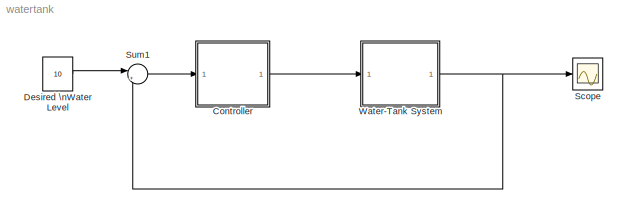
MODEL watertank
KIND model
CONFIG AbsTol = auto
CONFIG FixedStep = auto
CONFIG MaxStep = auto
CONFIG MinStep = auto
CONFIG PreLoadFcn = watertankdat
CONFIG RelTol = 1e-3
CONFIG Solver = ode45
CONFIG SolverMode = Auto
CONFIG StartTime = 0.0
CONFIG StopTime = 200.0
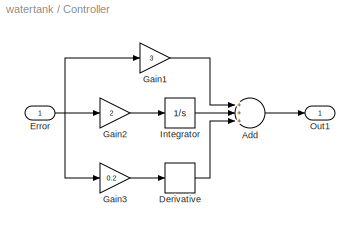
BLOCK [SubSystem] Controller
  Ports = [1, 1]
  TreatAsAtomicUnit = off
BLOCK [Sum] Controller/Add
  InputSameDT = off
  Inputs = +++
  OutDataTypeMode = Inherit via internal rule
  OutScaling = 2^-10
  Ports = [3, 1]
  SaturateOnIntegerOverflow = off
BLOCK [Derivative] Controller/Derivative
BLOCK [Inport] Controller/Error
  IconDisplay = Port number
BLOCK [Gain] Controller/Gain1
  Gain = 3
BLOCK [Gain] Controller/Gain2
  Gain = 2
BLOCK [Gain] Controller/Gain3
  Gain = 0.2
BLOCK [Integrator] Controller/Integrator
  Ports = [1, 1]
BLOCK [Outport] Controller/Out1
  IconDisplay = Port number
BLOCK [Constant] Desired \nWater Level
  Value = 10
BLOCK [Scope] Scope
  DataFormat = StructureWithTime
  NumInputPorts = 1
  Ports = [1]
BLOCK [Sum] Sum1
  IconShape = round
  InputSameDT = off
  Inputs = |+-
  OutDataTypeMode = Inherit via internal rule
  Ports = [2, 1]
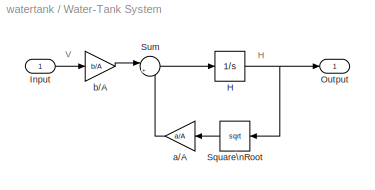
BLOCK [SubSystem] Water-Tank System
  Ports = [1, 1]
  TreatAsAtomicUnit = off
BLOCK [Integrator] Water-Tank System/H
  Ports = [1, 1]
BLOCK [Inport] Water-Tank System/Input
  IconDisplay = Port number
BLOCK [Outport] Water-Tank System/Output
  IconDisplay = Port number
BLOCK [Math] Water-Tank System/Square\nRoot
  Operator = sqrt
  OutputSignalType = real
  Ports = [1, 1]
BLOCK [Sum] Water-Tank System/Sum
  IconShape = round
  InputSameDT = off
  Inputs = |+-
  OutDataTypeMode = Inherit via internal rule
  Ports = [2, 1]
BLOCK [Gain] Water-Tank System/a//A
  Gain = a/A
BLOCK [Gain] Water-Tank System/b//A
  Gain = b/A
ANNOTATION Water-Tank System: H
ANNOTATION Water-Tank System: V
LINE Controller/Add:1 -> Controller/Out1:1
LINE Controller/Derivative:1 -> Controller/Add:3
NET Controller/Error:1 -> Controller/Gain1:1, Controller/Gain2:1, Controller/Gain3:1
LINE Controller/Gain1:1 -> Controller/Add:1
LINE Controller/Gain2:1 -> Controller/Integrator:1
LINE Controller/Gain3:1 -> Controller/Derivative:1
LINE Controller/Integrator:1 -> Controller/Add:2
LINE Controller:1 -> Water-Tank System:1
LINE Desired \nWater Level:1 -> Sum1:1
LINE Sum1:1 -> Controller:1
NET Water-Tank System/H:1 -> Water-Tank System/Output:1, Water-Tank System/Square\nRoot:1
LINE Water-Tank System/Input:1 -> Water-Tank System/b//A:1
LINE Water-Tank System/Square\nRoot:1 -> Water-Tank System/a//A:1
LINE Water-Tank System/Sum:1 -> Water-Tank System/H:1
LINE Water-Tank System/a//A:1 -> Water-Tank System/Sum:2
LINE Water-Tank System/b//A:1 -> Water-Tank System/Sum:1
NET Water-Tank System:1 -> Scope:1, Sum1:2
note: NET lines group one-source signal fan-out (src -> all destinations, sorted); 1:1 wires keep LINE
